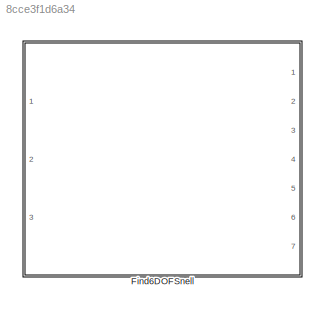
MODEL slx_8cce3f1d6a34
KIND library
CONFIG AbsTol = auto
CONFIG EnableMultiTasking = off
CONFIG FixedStep = auto
CONFIG MaxStep = auto
CONFIG MinStep = auto
CONFIG RelTol = 1e-3
CONFIG SampleTimeConstraint = Unconstrained
CONFIG Solver = VariableStepAuto
CONFIG SolverName = VariableStepAuto
CONFIG StartTime = 0.0
CONFIG StopTime = 10.0
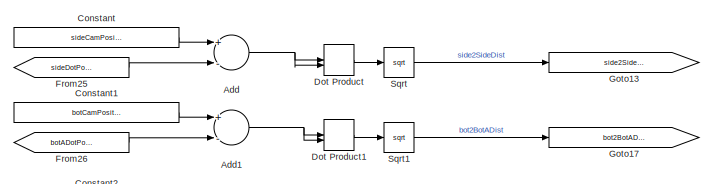
[diagram: Find6DOFSnell - part 1/4, top center region]
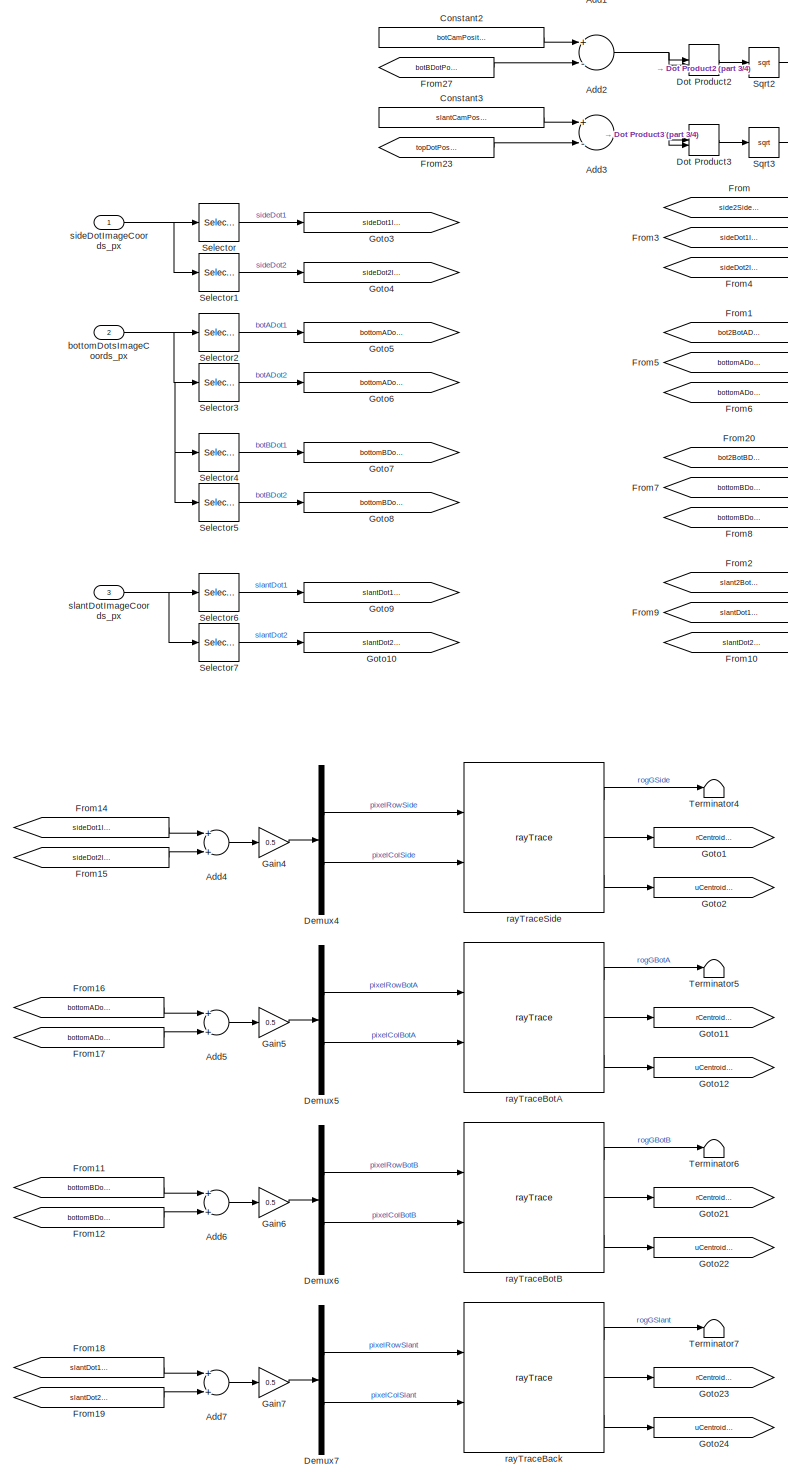
[diagram: Find6DOFSnell - part 2/4, left side, full height]
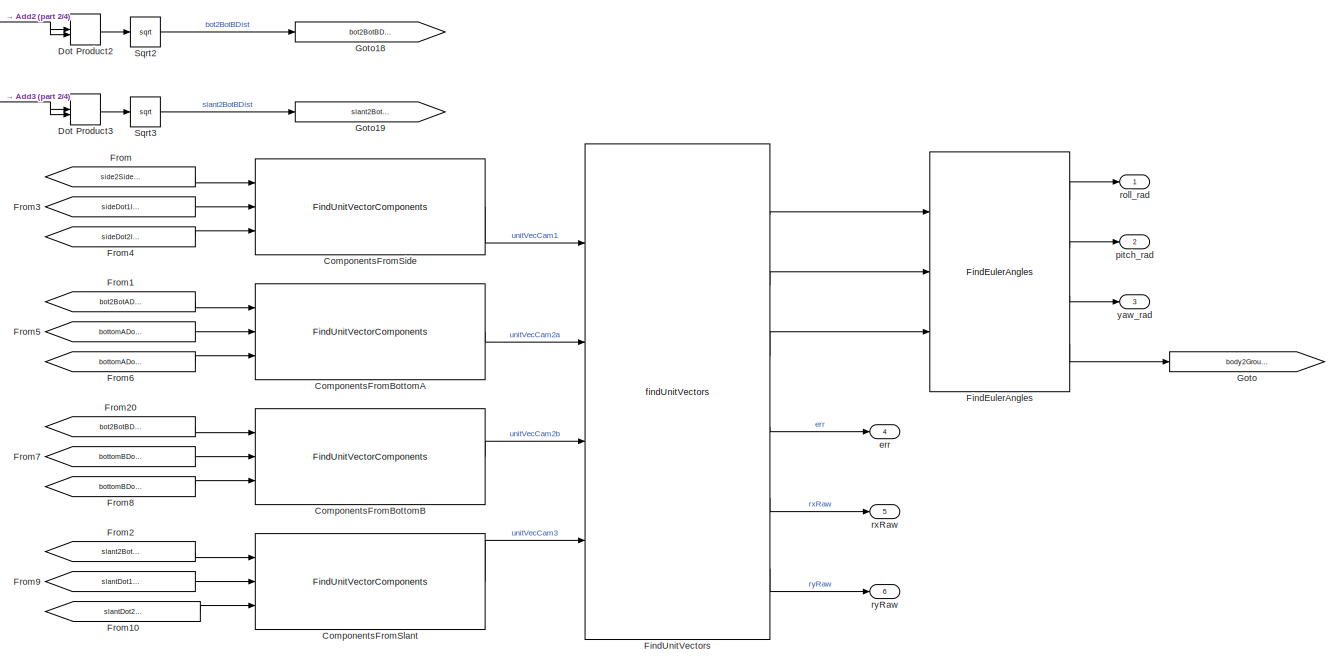
[diagram: Find6DOFSnell - part 3/4, top center region]
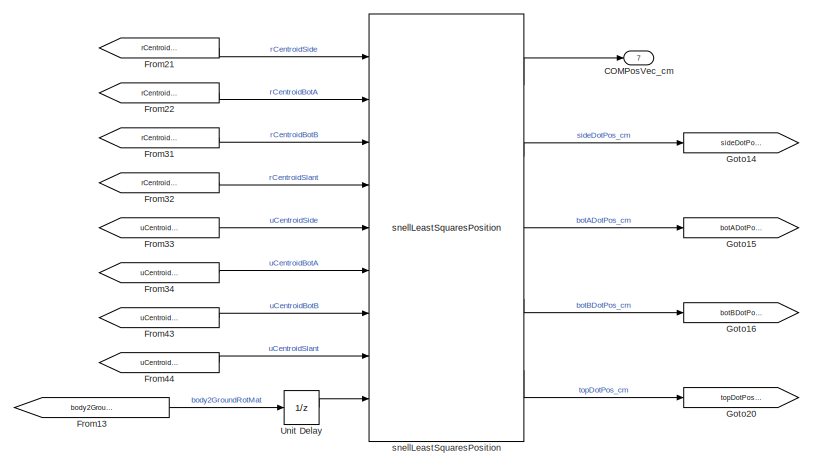
[diagram: Find6DOFSnell - part 4/4, bottom center region]
BLOCK [SubSystem] Find6DOFSnell
  Ports = [3, 7]
  RequestExecContextInheritance = off
BLOCK [Sum] Find6DOFSnell/Add
  InputSameDT = off
  Inputs = +-
  OutDataTypeStr = Inherit: Inherit via internal rule
  Ports = [2, 1]
  SaturateOnIntegerOverflow = off
BLOCK [Sum] Find6DOFSnell/Add1
  InputSameDT = off
  Inputs = +-
  OutDataTypeStr = Inherit: Inherit via internal rule
  Ports = [2, 1]
  SaturateOnIntegerOverflow = off
BLOCK [Sum] Find6DOFSnell/Add2
  InputSameDT = off
  Inputs = +-
  OutDataTypeStr = Inherit: Inherit via internal rule
  Ports = [2, 1]
  SaturateOnIntegerOverflow = off
BLOCK [Sum] Find6DOFSnell/Add3
  InputSameDT = off
  Inputs = +-
  OutDataTypeStr = Inherit: Inherit via internal rule
  Ports = [2, 1]
  SaturateOnIntegerOverflow = off
BLOCK [Sum] Find6DOFSnell/Add4
  InputSameDT = off
  OutDataTypeStr = Inherit: Inherit via internal rule
  Ports = [2, 1]
  SaturateOnIntegerOverflow = off
BLOCK [Sum] Find6DOFSnell/Add5
  InputSameDT = off
  OutDataTypeStr = Inherit: Inherit via internal rule
  Ports = [2, 1]
  SaturateOnIntegerOverflow = off
BLOCK [Sum] Find6DOFSnell/Add6
  InputSameDT = off
  OutDataTypeStr = Inherit: Inherit via internal rule
  Ports = [2, 1]
  SaturateOnIntegerOverflow = off
BLOCK [Sum] Find6DOFSnell/Add7
  InputSameDT = off
  OutDataTypeStr = Inherit: Inherit via internal rule
  Ports = [2, 1]
  SaturateOnIntegerOverflow = off
BLOCK [Outport] Find6DOFSnell/COMPosVec_cm
  IconDisplay = Port number
  Port = 7
  Unit = rad
BLOCK [Reference] Find6DOFSnell/ComponentsFromBottomA  REF=FindUnitVectorComponents_ul/FindUnitVectorComponents
  Ports = [3, 1]
  SourceBlock = FindUnitVectorComponents_ul/FindUnitVectorComponents
BLOCK [Reference] Find6DOFSnell/ComponentsFromBottomB  REF=FindUnitVectorComponents_ul/FindUnitVectorComponents
  Ports = [3, 1]
  SourceBlock = FindUnitVectorComponents_ul/FindUnitVectorComponents
BLOCK [Reference] Find6DOFSnell/ComponentsFromSide  REF=FindUnitVectorComponents_ul/FindUnitVectorComponents
  Ports = [3, 1]
  SourceBlock = FindUnitVectorComponents_ul/FindUnitVectorComponents
BLOCK [Reference] Find6DOFSnell/ComponentsFromSlant  REF=FindUnitVectorComponents_ul/FindUnitVectorComponents
  Ports = [3, 1]
  SourceBlock = FindUnitVectorComponents_ul/FindUnitVectorComponents
BLOCK [Constant] Find6DOFSnell/Constant
  Value = sideCamPositionVec_cm(:)
BLOCK [Constant] Find6DOFSnell/Constant1
  Value = botCamPositionVec_cm(:)
BLOCK [Constant] Find6DOFSnell/Constant2
  Value = botCamPositionVec_cm(:)
BLOCK [Constant] Find6DOFSnell/Constant3
  Value = slantCamPositionVec_cm(:)
BLOCK [Demux] Find6DOFSnell/Demux4
  DisplayOption = bar
  Outputs = 2
  Ports = [1, 2]
BLOCK [Demux] Find6DOFSnell/Demux5
  DisplayOption = bar
  Outputs = 2
  Ports = [1, 2]
BLOCK [Demux] Find6DOFSnell/Demux6
  DisplayOption = bar
  Outputs = 2
  Ports = [1, 2]
BLOCK [Demux] Find6DOFSnell/Demux7
  DisplayOption = bar
  Outputs = 2
  Ports = [1, 2]
BLOCK [DotProduct] Find6DOFSnell/Dot Product
  OutDataTypeStr = Inherit: Inherit via internal rule
BLOCK [DotProduct] Find6DOFSnell/Dot Product1
  OutDataTypeStr = Inherit: Inherit via internal rule
BLOCK [DotProduct] Find6DOFSnell/Dot Product2
  OutDataTypeStr = Inherit: Inherit via internal rule
BLOCK [DotProduct] Find6DOFSnell/Dot Product3
  OutDataTypeStr = Inherit: Inherit via internal rule
BLOCK [Reference] Find6DOFSnell/FindEulerAngles  REF=findEulerAngles_ul/FindEulerAngles
  Ports = [3, 4]
  SourceBlock = findEulerAngles_ul/FindEulerAngles
  SourceType = SubSystem
BLOCK [Reference] Find6DOFSnell/FindUnitVectors  REF=findUnitVectors_ul/findUnitVectors
  Ports = [4, 6]
  SourceBlock = findUnitVectors_ul/findUnitVectors
BLOCK [From] Find6DOFSnell/From
  GotoTag = side2SideDist_cm
BLOCK [From] Find6DOFSnell/From1
  GotoTag = bot2BotADist_cm
BLOCK [From] Find6DOFSnell/From10
  GotoTag = slantDot2ImageCoords_px
BLOCK [From] Find6DOFSnell/From11
  GotoTag = bottomBDot1ImageCoords_px
BLOCK [From] Find6DOFSnell/From12
  GotoTag = bottomBDot2ImageCoords_px
BLOCK [From] Find6DOFSnell/From13
  GotoTag = body2GroundRotationMatrix
BLOCK [From] Find6DOFSnell/From14
  GotoTag = sideDot1ImageCoords_px
BLOCK [From] Find6DOFSnell/From15
  GotoTag = sideDot2ImageCoords_px
BLOCK [From] Find6DOFSnell/From16
  GotoTag = bottomADot1ImageCoords_px
BLOCK [From] Find6DOFSnell/From17
  GotoTag = bottomADot2ImageCoords_px
BLOCK [From] Find6DOFSnell/From18
  GotoTag = slantDot1ImageCoords_px
BLOCK [From] Find6DOFSnell/From19
  GotoTag = slantDot2ImageCoords_px
BLOCK [From] Find6DOFSnell/From2
  GotoTag = slant2BotBDist_cm
BLOCK [From] Find6DOFSnell/From20
  GotoTag = bot2BotBDist_cm
BLOCK [From] Find6DOFSnell/From21
  GotoTag = rCentroidSide
BLOCK [From] Find6DOFSnell/From22
  GotoTag = rCentroidBotA
BLOCK [From] Find6DOFSnell/From23
  GotoTag = topDotPos_cm
BLOCK [From] Find6DOFSnell/From25
  GotoTag = sideDotPos_cm
BLOCK [From] Find6DOFSnell/From26
  GotoTag = botADotPos_cm
BLOCK [From] Find6DOFSnell/From27
  GotoTag = botBDotPos_cm
BLOCK [From] Find6DOFSnell/From3
  GotoTag = sideDot1ImageCoords_px
BLOCK [From] Find6DOFSnell/From31
  GotoTag = rCentroidBotB
BLOCK [From] Find6DOFSnell/From32
  GotoTag = rCentroidSlant
BLOCK [From] Find6DOFSnell/From33
  GotoTag = uCentroidSide
BLOCK [From] Find6DOFSnell/From34
  GotoTag = uCentroidBotA
BLOCK [From] Find6DOFSnell/From4
  GotoTag = sideDot2ImageCoords_px
BLOCK [From] Find6DOFSnell/From43
  GotoTag = uCentroidBotB
BLOCK [From] Find6DOFSnell/From44
  GotoTag = uCentroidSlant
BLOCK [From] Find6DOFSnell/From5
  GotoTag = bottomADot1ImageCoords_px
BLOCK [From] Find6DOFSnell/From6
  GotoTag = bottomADot2ImageCoords_px
BLOCK [From] Find6DOFSnell/From7
  GotoTag = bottomBDot1ImageCoords_px
BLOCK [From] Find6DOFSnell/From8
  GotoTag = bottomBDot2ImageCoords_px
BLOCK [From] Find6DOFSnell/From9
  GotoTag = slantDot1ImageCoords_px
BLOCK [Gain] Find6DOFSnell/Gain4
  Gain = 0.5
  OutDataTypeStr = Inherit: Inherit via internal rule
  ParamDataTypeStr = Inherit: Inherit via internal rule
  SaturateOnIntegerOverflow = off
BLOCK [Gain] Find6DOFSnell/Gain5
  Gain = 0.5
  OutDataTypeStr = Inherit: Inherit via internal rule
  ParamDataTypeStr = Inherit: Inherit via internal rule
  SaturateOnIntegerOverflow = off
BLOCK [Gain] Find6DOFSnell/Gain6
  Gain = 0.5
  OutDataTypeStr = Inherit: Inherit via internal rule
  ParamDataTypeStr = Inherit: Inherit via internal rule
  SaturateOnIntegerOverflow = off
BLOCK [Gain] Find6DOFSnell/Gain7
  Gain = 0.5
  OutDataTypeStr = Inherit: Inherit via internal rule
  ParamDataTypeStr = Inherit: Inherit via internal rule
  SaturateOnIntegerOverflow = off
BLOCK [Goto] Find6DOFSnell/Goto
  GotoTag = body2GroundRotationMatrix
BLOCK [Goto] Find6DOFSnell/Goto1
  GotoTag = rCentroidSide
BLOCK [Goto] Find6DOFSnell/Goto10
  GotoTag = slantDot2ImageCoords_px
BLOCK [Goto] Find6DOFSnell/Goto11
  GotoTag = rCentroidBotA
BLOCK [Goto] Find6DOFSnell/Goto12
  GotoTag = uCentroidBotA
BLOCK [Goto] Find6DOFSnell/Goto13
  GotoTag = side2SideDist_cm
BLOCK [Goto] Find6DOFSnell/Goto14
  GotoTag = sideDotPos_cm
BLOCK [Goto] Find6DOFSnell/Goto15
  GotoTag = botADotPos_cm
BLOCK [Goto] Find6DOFSnell/Goto16
  GotoTag = botBDotPos_cm
BLOCK [Goto] Find6DOFSnell/Goto17
  GotoTag = bot2BotADist_cm
BLOCK [Goto] Find6DOFSnell/Goto18
  GotoTag = bot2BotBDist_cm
BLOCK [Goto] Find6DOFSnell/Goto19
  GotoTag = slant2BotBDist_cm
BLOCK [Goto] Find6DOFSnell/Goto2
  GotoTag = uCentroidSide
BLOCK [Goto] Find6DOFSnell/Goto20
  GotoTag = topDotPos_cm
BLOCK [Goto] Find6DOFSnell/Goto21
  GotoTag = rCentroidBotB
BLOCK [Goto] Find6DOFSnell/Goto22
  GotoTag = uCentroidBotB
BLOCK [Goto] Find6DOFSnell/Goto23
  GotoTag = rCentroidSlant
BLOCK [Goto] Find6DOFSnell/Goto24
  GotoTag = uCentroidSlant
BLOCK [Goto] Find6DOFSnell/Goto3
  GotoTag = sideDot1ImageCoords_px
BLOCK [Goto] Find6DOFSnell/Goto4
  GotoTag = sideDot2ImageCoords_px
BLOCK [Goto] Find6DOFSnell/Goto5
  GotoTag = bottomADot1ImageCoords_px
BLOCK [Goto] Find6DOFSnell/Goto6
  GotoTag = bottomADot2ImageCoords_px
BLOCK [Goto] Find6DOFSnell/Goto7
  GotoTag = bottomBDot1ImageCoords_px
BLOCK [Goto] Find6DOFSnell/Goto8
  GotoTag = bottomBDot2ImageCoords_px
BLOCK [Goto] Find6DOFSnell/Goto9
  GotoTag = slantDot1ImageCoords_px
BLOCK [Selector] Find6DOFSnell/Selector
  IndexOptions = Index vector (dialog)
  Indices = [1 2]
  InputPortWidth = 4
  OutputSizes = 1
  Ports = [1, 1]
BLOCK [Selector] Find6DOFSnell/Selector1
  IndexOptions = Index vector (dialog)
  Indices = [3 4]
  InputPortWidth = 4
  OutputSizes = 1
  Ports = [1, 1]
BLOCK [Selector] Find6DOFSnell/Selector2
  IndexOptions = Index vector (dialog)
  Indices = [1 2]
  InputPortWidth = 8
  OutputSizes = 1
  Ports = [1, 1]
BLOCK [Selector] Find6DOFSnell/Selector3
  IndexOptions = Index vector (dialog)
  Indices = [3 4]
  InputPortWidth = 8
  OutputSizes = 1
  Ports = [1, 1]
BLOCK [Selector] Find6DOFSnell/Selector4
  IndexOptions = Index vector (dialog)
  Indices = [5 6]
  InputPortWidth = 8
  OutputSizes = 1
  Ports = [1, 1]
BLOCK [Selector] Find6DOFSnell/Selector5
  IndexOptions = Index vector (dialog)
  Indices = [7 8]
  InputPortWidth = 8
  OutputSizes = 1
  Ports = [1, 1]
BLOCK [Selector] Find6DOFSnell/Selector6
  IndexOptions = Index vector (dialog)
  Indices = [1 2]
  InputPortWidth = 4
  OutputSizes = 1
  Ports = [1, 1]
BLOCK [Selector] Find6DOFSnell/Selector7
  IndexOptions = Index vector (dialog)
  Indices = [3 4]
  InputPortWidth = 4
  OutputSizes = 1
  Ports = [1, 1]
BLOCK [Sqrt] Find6DOFSnell/Sqrt
BLOCK [Sqrt] Find6DOFSnell/Sqrt1
BLOCK [Sqrt] Find6DOFSnell/Sqrt2
BLOCK [Sqrt] Find6DOFSnell/Sqrt3
BLOCK [Terminator] Find6DOFSnell/Terminator4
BLOCK [Terminator] Find6DOFSnell/Terminator5
BLOCK [Terminator] Find6DOFSnell/Terminator6
BLOCK [Terminator] Find6DOFSnell/Terminator7
BLOCK [UnitDelay] Find6DOFSnell/Unit Delay
  InitialCondition = eye(3)
  InputProcessing = Elements as channels (sample based)
  SampleTime = -1
BLOCK [Inport] Find6DOFSnell/bottomDotsImageCoords_px
  IconDisplay = Port number
  Port = 2
BLOCK [Outport] Find6DOFSnell/err
  IconDisplay = Port number
  Port = 4
BLOCK [Outport] Find6DOFSnell/pitch_rad
  IconDisplay = Port number
  Port = 2
  Unit = rad
BLOCK [Reference] Find6DOFSnell/rayTraceBack  REF=rayTrace_ul/rayTrace
  Ports = [2, 3]
  SourceBlock = rayTrace_ul/rayTrace
BLOCK [Reference] Find6DOFSnell/rayTraceBotA  REF=rayTrace_ul/rayTrace
  Ports = [2, 3]
  SourceBlock = rayTrace_ul/rayTrace
BLOCK [Reference] Find6DOFSnell/rayTraceBotB  REF=rayTrace_ul/rayTrace
  Ports = [2, 3]
  SourceBlock = rayTrace_ul/rayTrace
BLOCK [Reference] Find6DOFSnell/rayTraceSide  REF=rayTrace_ul/rayTrace
  Ports = [2, 3]
  SourceBlock = rayTrace_ul/rayTrace
BLOCK [Outport] Find6DOFSnell/roll_rad
  IconDisplay = Port number
  Unit = rad
BLOCK [Outport] Find6DOFSnell/rxRaw
  IconDisplay = Port number
  Port = 5
BLOCK [Outport] Find6DOFSnell/ryRaw
  IconDisplay = Port number
  Port = 6
BLOCK [Inport] Find6DOFSnell/sideDotImageCoords_px
  IconDisplay = Port number
BLOCK [Inport] Find6DOFSnell/slantDotImageCoords_px
  IconDisplay = Port number
  Port = 3
BLOCK [Reference] Find6DOFSnell/snellLeastSquaresPosition  REF=snellLeastSquaresPosition_ul/snellLeastSquaresPosition
  Ports = [9, 5]
  SourceBlock = snellLeastSquaresPosition_ul/snellLeastSquaresPosition
BLOCK [Outport] Find6DOFSnell/yaw_rad
  IconDisplay = Port number
  Port = 3
  Unit = rad
NET Find6DOFSnell/Add1:1 -> Find6DOFSnell/Dot Product1:1, Find6DOFSnell/Dot Product1:2
NET Find6DOFSnell/Add2:1 -> Find6DOFSnell/Dot Product2:1, Find6DOFSnell/Dot Product2:2
NET Find6DOFSnell/Add3:1 -> Find6DOFSnell/Dot Product3:1, Find6DOFSnell/Dot Product3:2
LINE Find6DOFSnell/Add4:1 -> Find6DOFSnell/Gain4:1
LINE Find6DOFSnell/Add5:1 -> Find6DOFSnell/Gain5:1
LINE Find6DOFSnell/Add6:1 -> Find6DOFSnell/Gain6:1
LINE Find6DOFSnell/Add7:1 -> Find6DOFSnell/Gain7:1
NET Find6DOFSnell/Add:1 -> Find6DOFSnell/Dot Product:1, Find6DOFSnell/Dot Product:2
LINE Find6DOFSnell/ComponentsFromBottomA:1 -> Find6DOFSnell/FindUnitVectors:2
LINE Find6DOFSnell/ComponentsFromBottomB:1 -> Find6DOFSnell/FindUnitVectors:3
LINE Find6DOFSnell/ComponentsFromSide:1 -> Find6DOFSnell/FindUnitVectors:1
LINE Find6DOFSnell/ComponentsFromSlant:1 -> Find6DOFSnell/FindUnitVectors:4
LINE Find6DOFSnell/Constant1:1 -> Find6DOFSnell/Add1:1
LINE Find6DOFSnell/Constant2:1 -> Find6DOFSnell/Add2:1
LINE Find6DOFSnell/Constant3:1 -> Find6DOFSnell/Add3:1
LINE Find6DOFSnell/Constant:1 -> Find6DOFSnell/Add:1
LINE Find6DOFSnell/Demux4:1 -> Find6DOFSnell/rayTraceSide:1
LINE Find6DOFSnell/Demux4:2 -> Find6DOFSnell/rayTraceSide:2
LINE Find6DOFSnell/Demux5:1 -> Find6DOFSnell/rayTraceBotA:1
LINE Find6DOFSnell/Demux5:2 -> Find6DOFSnell/rayTraceBotA:2
LINE Find6DOFSnell/Demux6:1 -> Find6DOFSnell/rayTraceBotB:1
LINE Find6DOFSnell/Demux6:2 -> Find6DOFSnell/rayTraceBotB:2
LINE Find6DOFSnell/Demux7:1 -> Find6DOFSnell/rayTraceBack:1
LINE Find6DOFSnell/Demux7:2 -> Find6DOFSnell/rayTraceBack:2
LINE Find6DOFSnell/Dot Product1:1 -> Find6DOFSnell/Sqrt1:1
LINE Find6DOFSnell/Dot Product2:1 -> Find6DOFSnell/Sqrt2:1
LINE Find6DOFSnell/Dot Product3:1 -> Find6DOFSnell/Sqrt3:1
LINE Find6DOFSnell/Dot Product:1 -> Find6DOFSnell/Sqrt:1
LINE Find6DOFSnell/FindEulerAngles:1 -> Find6DOFSnell/roll_rad:1
LINE Find6DOFSnell/FindEulerAngles:2 -> Find6DOFSnell/pitch_rad:1
LINE Find6DOFSnell/FindEulerAngles:3 -> Find6DOFSnell/yaw_rad:1
LINE Find6DOFSnell/FindEulerAngles:4 -> Find6DOFSnell/Goto:1
LINE Find6DOFSnell/FindUnitVectors:1 -> Find6DOFSnell/FindEulerAngles:1
LINE Find6DOFSnell/FindUnitVectors:2 -> Find6DOFSnell/FindEulerAngles:2
LINE Find6DOFSnell/FindUnitVectors:3 -> Find6DOFSnell/FindEulerAngles:3
LINE Find6DOFSnell/FindUnitVectors:4 -> Find6DOFSnell/err:1
LINE Find6DOFSnell/FindUnitVectors:5 -> Find6DOFSnell/rxRaw:1
LINE Find6DOFSnell/FindUnitVectors:6 -> Find6DOFSnell/ryRaw:1
LINE Find6DOFSnell/From10:1 -> Find6DOFSnell/ComponentsFromSlant:3
LINE Find6DOFSnell/From11:1 -> Find6DOFSnell/Add6:1
LINE Find6DOFSnell/From12:1 -> Find6DOFSnell/Add6:2
LINE Find6DOFSnell/From13:1 -> Find6DOFSnell/Unit Delay:1
LINE Find6DOFSnell/From14:1 -> Find6DOFSnell/Add4:1
LINE Find6DOFSnell/From15:1 -> Find6DOFSnell/Add4:2
LINE Find6DOFSnell/From16:1 -> Find6DOFSnell/Add5:1
LINE Find6DOFSnell/From17:1 -> Find6DOFSnell/Add5:2
LINE Find6DOFSnell/From18:1 -> Find6DOFSnell/Add7:1
LINE Find6DOFSnell/From19:1 -> Find6DOFSnell/Add7:2
LINE Find6DOFSnell/From1:1 -> Find6DOFSnell/ComponentsFromBottomA:1
LINE Find6DOFSnell/From20:1 -> Find6DOFSnell/ComponentsFromBottomB:1
LINE Find6DOFSnell/From21:1 -> Find6DOFSnell/snellLeastSquaresPosition:1
LINE Find6DOFSnell/From22:1 -> Find6DOFSnell/snellLeastSquaresPosition:2
LINE Find6DOFSnell/From23:1 -> Find6DOFSnell/Add3:2
LINE Find6DOFSnell/From25:1 -> Find6DOFSnell/Add:2
LINE Find6DOFSnell/From26:1 -> Find6DOFSnell/Add1:2
LINE Find6DOFSnell/From27:1 -> Find6DOFSnell/Add2:2
LINE Find6DOFSnell/From2:1 -> Find6DOFSnell/ComponentsFromSlant:1
LINE Find6DOFSnell/From31:1 -> Find6DOFSnell/snellLeastSquaresPosition:3
LINE Find6DOFSnell/From32:1 -> Find6DOFSnell/snellLeastSquaresPosition:4
LINE Find6DOFSnell/From33:1 -> Find6DOFSnell/snellLeastSquaresPosition:5
LINE Find6DOFSnell/From34:1 -> Find6DOFSnell/snellLeastSquaresPosition:6
LINE Find6DOFSnell/From3:1 -> Find6DOFSnell/ComponentsFromSide:2
LINE Find6DOFSnell/From43:1 -> Find6DOFSnell/snellLeastSquaresPosition:7
LINE Find6DOFSnell/From44:1 -> Find6DOFSnell/snellLeastSquaresPosition:8
LINE Find6DOFSnell/From4:1 -> Find6DOFSnell/ComponentsFromSide:3
LINE Find6DOFSnell/From5:1 -> Find6DOFSnell/ComponentsFromBottomA:2
LINE Find6DOFSnell/From6:1 -> Find6DOFSnell/ComponentsFromBottomA:3
LINE Find6DOFSnell/From7:1 -> Find6DOFSnell/ComponentsFromBottomB:2
LINE Find6DOFSnell/From8:1 -> Find6DOFSnell/ComponentsFromBottomB:3
LINE Find6DOFSnell/From9:1 -> Find6DOFSnell/ComponentsFromSlant:2
LINE Find6DOFSnell/From:1 -> Find6DOFSnell/ComponentsFromSide:1
LINE Find6DOFSnell/Gain4:1 -> Find6DOFSnell/Demux4:1
LINE Find6DOFSnell/Gain5:1 -> Find6DOFSnell/Demux5:1
LINE Find6DOFSnell/Gain6:1 -> Find6DOFSnell/Demux6:1
LINE Find6DOFSnell/Gain7:1 -> Find6DOFSnell/Demux7:1
LINE Find6DOFSnell/Selector1:1 -> Find6DOFSnell/Goto4:1
LINE Find6DOFSnell/Selector2:1 -> Find6DOFSnell/Goto5:1
LINE Find6DOFSnell/Selector3:1 -> Find6DOFSnell/Goto6:1
LINE Find6DOFSnell/Selector4:1 -> Find6DOFSnell/Goto7:1
LINE Find6DOFSnell/Selector5:1 -> Find6DOFSnell/Goto8:1
LINE Find6DOFSnell/Selector6:1 -> Find6DOFSnell/Goto9:1
LINE Find6DOFSnell/Selector7:1 -> Find6DOFSnell/Goto10:1
LINE Find6DOFSnell/Selector:1 -> Find6DOFSnell/Goto3:1
LINE Find6DOFSnell/Sqrt1:1 -> Find6DOFSnell/Goto17:1
LINE Find6DOFSnell/Sqrt2:1 -> Find6DOFSnell/Goto18:1
LINE Find6DOFSnell/Sqrt3:1 -> Find6DOFSnell/Goto19:1
LINE Find6DOFSnell/Sqrt:1 -> Find6DOFSnell/Goto13:1
LINE Find6DOFSnell/Unit Delay:1 -> Find6DOFSnell/snellLeastSquaresPosition:9
NET Find6DOFSnell/bottomDotsImageCoords_px:1 -> Find6DOFSnell/Selector2:1, Find6DOFSnell/Selector3:1, Find6DOFSnell/Selector4:1, Find6DOFSnell/Selector5:1
LINE Find6DOFSnell/rayTraceBack:1 -> Find6DOFSnell/Terminator7:1
LINE Find6DOFSnell/rayTraceBack:2 -> Find6DOFSnell/Goto23:1
LINE Find6DOFSnell/rayTraceBack:3 -> Find6DOFSnell/Goto24:1
LINE Find6DOFSnell/rayTraceBotA:1 -> Find6DOFSnell/Terminator5:1
LINE Find6DOFSnell/rayTraceBotA:2 -> Find6DOFSnell/Goto11:1
LINE Find6DOFSnell/rayTraceBotA:3 -> Find6DOFSnell/Goto12:1
LINE Find6DOFSnell/rayTraceBotB:1 -> Find6DOFSnell/Terminator6:1
LINE Find6DOFSnell/rayTraceBotB:2 -> Find6DOFSnell/Goto21:1
LINE Find6DOFSnell/rayTraceBotB:3 -> Find6DOFSnell/Goto22:1
LINE Find6DOFSnell/rayTraceSide:1 -> Find6DOFSnell/Terminator4:1
LINE Find6DOFSnell/rayTraceSide:2 -> Find6DOFSnell/Goto1:1
LINE Find6DOFSnell/rayTraceSide:3 -> Find6DOFSnell/Goto2:1
NET Find6DOFSnell/sideDotImageCoords_px:1 -> Find6DOFSnell/Selector1:1, Find6DOFSnell/Selector:1
NET Find6DOFSnell/slantDotImageCoords_px:1 -> Find6DOFSnell/Selector6:1, Find6DOFSnell/Selector7:1
LINE Find6DOFSnell/snellLeastSquaresPosition:1 -> Find6DOFSnell/COMPosVec_cm:1
LINE Find6DOFSnell/snellLeastSquaresPosition:2 -> Find6DOFSnell/Goto14:1
LINE Find6DOFSnell/snellLeastSquaresPosition:3 -> Find6DOFSnell/Goto15:1
LINE Find6DOFSnell/snellLeastSquaresPosition:4 -> Find6DOFSnell/Goto16:1
LINE Find6DOFSnell/snellLeastSquaresPosition:5 -> Find6DOFSnell/Goto20:1
note: NET lines group one-source signal fan-out (src -> all destinations, sorted); 1:1 wires keep LINE
